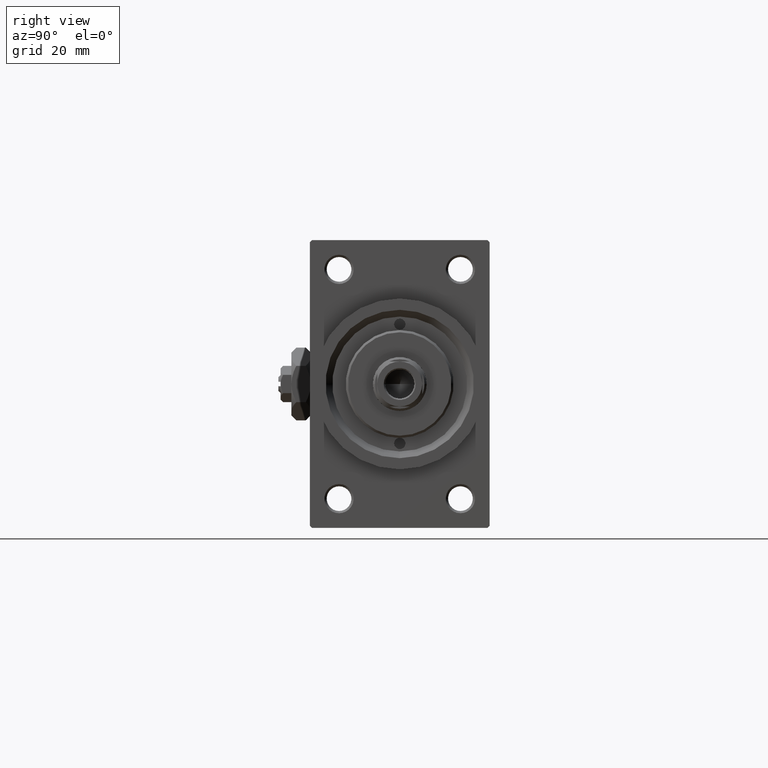
[diagram: clean part render]
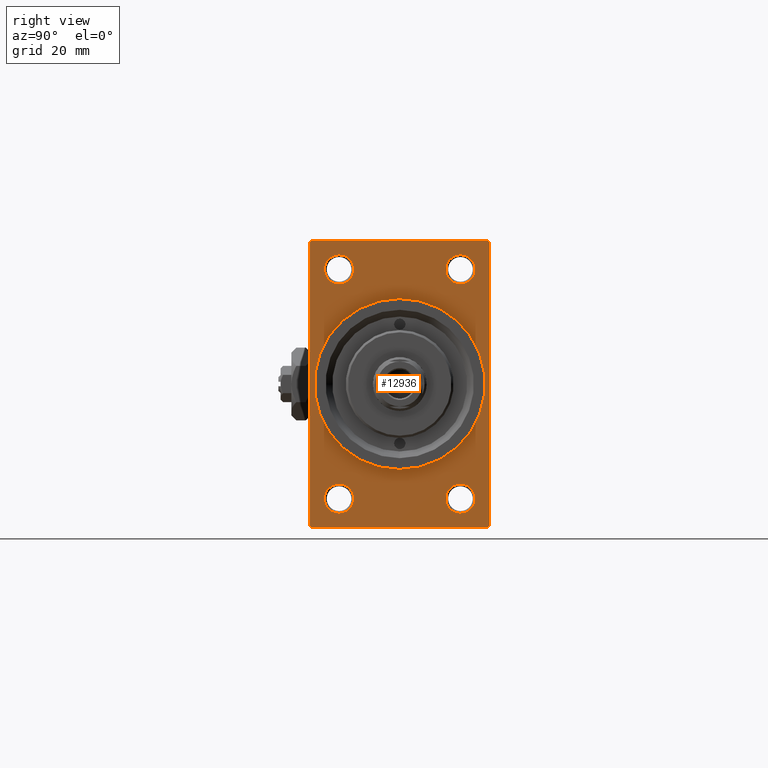
[diagram: same view with one face highlighted and labeled with its STEP entity id]
A machine part, right view. The second image highlights one B-rep face of the part: STEP entity #12936.
In plain terms, the highlighted planar face has unit normal (-1, 0, 0).
Its self-contained STEP definition (entity closure, byte-faithful):
#43 = VERTEX_POINT ( 'NONE', #16534 ) ;
#225 = EDGE_CURVE ( 'NONE', #3239, #8449, #17747, .T. ) ;
#439 = ORIENTED_EDGE ( 'NONE', *, *, #14176, .T. ) ;
#778 = DIRECTION ( 'NONE',  ( 1.000000000000000000, 0.000000000000000000, 0.000000000000000000 ) ) ;
#1007 = VERTEX_POINT ( 'NONE', #23251 ) ;
#1374 = EDGE_CURVE ( 'NONE', #1007, #13366, #32561, .T. ) ;
#1387 = ORIENTED_EDGE ( 'NONE', *, *, #41752, .F. ) ;
#1985 = ORIENTED_EDGE ( 'NONE', *, *, #25060, .T. ) ;
#2130 = ORIENTED_EDGE ( 'NONE', *, *, #24710, .T. ) ;
#2516 = AXIS2_PLACEMENT_3D ( 'NONE', #26109, #47912, #33058 ) ;
#3181 = ORIENTED_EDGE ( 'NONE', *, *, #18491, .T. ) ;
#3239 = VERTEX_POINT ( 'NONE', #28659 ) ;
#3296 = DIRECTION ( 'NONE',  ( -1.000000000000000000, -0.000000000000000000, -0.000000000000000000 ) ) ;
#3502 = CARTESIAN_POINT ( 'NONE',  ( 109.0000000000000142, 0.000000000000000000, 0.000000000000000000 ) ) ;
#3576 = CIRCLE ( 'NONE', #45446, 3.249999999999961364 ) ;
#3873 = EDGE_CURVE ( 'NONE', #43, #45428, #46825, .T. ) ;
#4296 = CARTESIAN_POINT ( 'NONE',  ( 109.0000000000000142, 2.326828918379970970E-15, -19.00000000000000000 ) ) ;
#4420 = VECTOR ( 'NONE', #29526, 1000.000000000000114 ) ;
#4446 = VERTEX_POINT ( 'NONE', #18445 ) ;
#5820 = ORIENTED_EDGE ( 'NONE', *, *, #22626, .T. ) ;
#6018 = LINE ( 'NONE', #47590, #4420 ) ;
#6249 = ORIENTED_EDGE ( 'NONE', *, *, #3873, .T. ) ;
#6769 = DIRECTION ( 'NONE',  ( 0.000000000000000000, -1.000000000000000000, -1.734723475976807094E-16 ) ) ;
#7155 = CARTESIAN_POINT ( 'NONE',  ( 109.0000000000000142, -13.50000000000000533, -25.49999999999999645 ) ) ;
#7211 = FACE_BOUND ( 'NONE', #21275, .T. ) ;
#7742 = CARTESIAN_POINT ( 'NONE',  ( 109.0000000000000142, 0.000000000000000000, 0.000000000000000000 ) ) ;
#8189 = CIRCLE ( 'NONE', #39026, 3.250000000000002665 ) ;
#8299 = VERTEX_POINT ( 'NONE', #39030 ) ;
#8449 = VERTEX_POINT ( 'NONE', #13995 ) ;
#8724 = EDGE_CURVE ( 'NONE', #13366, #1007, #8189, .T. ) ;
#8752 = CARTESIAN_POINT ( 'NONE',  ( 109.0000000000000142, -20.00000000000000000, 31.99999999999999289 ) ) ;
#8940 = EDGE_CURVE ( 'NONE', #8299, #4446, #17895, .T. ) ;
#9097 = ORIENTED_EDGE ( 'NONE', *, *, #1374, .T. ) ;
#9766 = CARTESIAN_POINT ( 'NONE',  ( 109.0000000000000142, -13.50000000000000533, -22.24999999999999289 ) ) ;
#10873 = CARTESIAN_POINT ( 'NONE',  ( 109.0000000000000142, 20.00000000000000000, 32.00000000000000000 ) ) ;
#10881 = DIRECTION ( 'NONE',  ( -1.000000000000000000, -0.000000000000000000, -0.000000000000000000 ) ) ;
#11174 = DIRECTION ( 'NONE',  ( -1.000000000000000000, 0.000000000000000000, -0.000000000000000000 ) ) ;
#11866 = CIRCLE ( 'NONE', #20513, 19.00000000000000000 ) ;
#11884 = DIRECTION ( 'NONE',  ( 0.000000000000000000, 0.000000000000000000, 1.000000000000000000 ) ) ;
#11913 = VERTEX_POINT ( 'NONE', #30309 ) ;
#12936 = ADVANCED_FACE ( 'NONE', ( #26002, #38133, #22543, #34668, #7211, #41843 ), #48805, .F. ) ;
#13242 = ORIENTED_EDGE ( 'NONE', *, *, #8724, .T. ) ;
#13335 = VERTEX_POINT ( 'NONE', #9766 ) ;
#13366 = VERTEX_POINT ( 'NONE', #33268 ) ;
#13391 = AXIS2_PLACEMENT_3D ( 'NONE', #7742, #778, #22814 ) ;
#13956 = EDGE_LOOP ( 'NONE', ( #9097, #13242 ) ) ;
#13995 = CARTESIAN_POINT ( 'NONE',  ( 109.0000000000000142, -19.49999999999998579, -32.00000000000000000 ) ) ;
#14176 = EDGE_CURVE ( 'NONE', #35489, #22071, #39773, .T. ) ;
#14235 = ORIENTED_EDGE ( 'NONE', *, *, #25270, .T. ) ;
#14260 = CARTESIAN_POINT ( 'NONE',  ( 109.0000000000000142, 19.49999999999998579, 32.00000000000000000 ) ) ;
#14382 = CARTESIAN_POINT ( 'NONE',  ( 109.0000000000000142, 13.49999999999999822, 25.50000000000000355 ) ) ;
#14592 = ORIENTED_EDGE ( 'NONE', *, *, #41459, .F. ) ;
#14663 = CARTESIAN_POINT ( 'NONE',  ( 109.0000000000000142, 13.49999999999999822, 22.25000000000004263 ) ) ;
#15020 = LINE ( 'NONE', #45211, #33718 ) ;
#16439 = DIRECTION ( 'NONE',  ( -1.000000000000000000, -0.000000000000000000, -0.000000000000000000 ) ) ;
#16520 = ORIENTED_EDGE ( 'NONE', *, *, #225, .T. ) ;
#16534 = CARTESIAN_POINT ( 'NONE',  ( 109.0000000000000142, 13.49999999999999822, -22.24999999999999645 ) ) ;
#16602 = EDGE_LOOP ( 'NONE', ( #1985, #6249 ) ) ;
#16799 = CARTESIAN_POINT ( 'NONE',  ( 109.0000000000000142, 13.49999999999999822, 25.50000000000000355 ) ) ;
#17112 = DIRECTION ( 'NONE',  ( -1.000000000000000000, -0.000000000000000000, -0.000000000000000000 ) ) ;
#17333 = CIRCLE ( 'NONE', #13391, 19.00000000000000000 ) ;
#17531 = CARTESIAN_POINT ( 'NONE',  ( 109.0000000000000142, 13.49999999999999822, 28.74999999999996803 ) ) ;
#17747 = LINE ( 'NONE', #48206, #32515 ) ;
#17895 = LINE ( 'NONE', #39939, #31877 ) ;
#17970 = LINE ( 'NONE', #14260, #28038 ) ;
#17996 = CARTESIAN_POINT ( 'NONE',  ( 109.0000000000000142, 20.00000000000000000, -31.49999999999998579 ) ) ;
#18445 = CARTESIAN_POINT ( 'NONE',  ( 109.0000000000000142, -19.49999999999998579, 31.99999999999999289 ) ) ;
#18469 = VECTOR ( 'NONE', #31747, 1000.000000000000000 ) ;
#18491 = EDGE_CURVE ( 'NONE', #37594, #3239, #27053, .T. ) ;
#18577 = DIRECTION ( 'NONE',  ( -0.000000000000000000, 0.000000000000000000, 1.000000000000000000 ) ) ;
#19532 = VERTEX_POINT ( 'NONE', #21771 ) ;
#20170 = EDGE_LOOP ( 'NONE', ( #28845, #2130 ) ) ;
#20499 = DIRECTION ( 'NONE',  ( -1.000000000000000000, -0.000000000000000000, -0.000000000000000000 ) ) ;
#20513 = AXIS2_PLACEMENT_3D ( 'NONE', #32370, #24679, #35131 ) ;
#20984 = VECTOR ( 'NONE', #38071, 1000.000000000000000 ) ;
#21275 = EDGE_LOOP ( 'NONE', ( #14592, #1387 ) ) ;
#21454 = DIRECTION ( 'NONE',  ( 0.000000000000000000, 0.7071067811865426878, -0.7071067811865524577 ) ) ;
#21462 = VECTOR ( 'NONE', #37048, 1000.000000000000114 ) ;
#21771 = CARTESIAN_POINT ( 'NONE',  ( 109.0000000000000142, -13.50000000000000533, -28.74999999999999645 ) ) ;
#22071 = VERTEX_POINT ( 'NONE', #17996 ) ;
#22178 = DIRECTION ( 'NONE',  ( 0.000000000000000000, -0.7071067811865474617, 0.7071067811865474617 ) ) ;
#22543 = FACE_BOUND ( 'NONE', #16602, .T. ) ;
#22626 = EDGE_CURVE ( 'NONE', #4446, #37594, #6018, .T. ) ;
#22675 = DIRECTION ( 'NONE',  ( 0.000000000000000000, -1.000000000000000000, 0.000000000000000000 ) ) ;
#22814 = DIRECTION ( 'NONE',  ( 0.000000000000000000, 0.000000000000000000, -1.000000000000000000 ) ) ;
#23118 = AXIS2_PLACEMENT_3D ( 'NONE', #40926, #3296, #11884 ) ;
#23251 = CARTESIAN_POINT ( 'NONE',  ( 109.0000000000000142, -13.50000000000000178, 22.25000000000000000 ) ) ;
#23752 = CARTESIAN_POINT ( 'NONE',  ( 109.0000000000000142, -13.50000000000000533, -25.49999999999999645 ) ) ;
#24104 = AXIS2_PLACEMENT_3D ( 'NONE', #29924, #10881, #25949 ) ;
#24207 = AXIS2_PLACEMENT_3D ( 'NONE', #23752, #39586, #35638 ) ;
#24679 = DIRECTION ( 'NONE',  ( 1.000000000000000000, 0.000000000000000000, 0.000000000000000000 ) ) ;
#24710 = EDGE_CURVE ( 'NONE', #45634, #40512, #3576, .T. ) ;
#24999 = EDGE_CURVE ( 'NONE', #19532, #13335, #39918, .T. ) ;
#25060 = EDGE_CURVE ( 'NONE', #45428, #43, #41534, .T. ) ;
#25270 = EDGE_CURVE ( 'NONE', #11913, #8299, #17970, .T. ) ;
#25949 = DIRECTION ( 'NONE',  ( 0.000000000000000000, 0.000000000000000000, 1.000000000000000000 ) ) ;
#26002 = FACE_BOUND ( 'NONE', #13956, .T. ) ;
#26109 = CARTESIAN_POINT ( 'NONE',  ( 109.0000000000000142, -13.50000000000000178, 25.50000000000000355 ) ) ;
#26346 = ORIENTED_EDGE ( 'NONE', *, *, #28120, .F. ) ;
#26599 = CIRCLE ( 'NONE', #24207, 3.250000000000002665 ) ;
#26649 = EDGE_CURVE ( 'NONE', #40512, #45634, #32078, .T. ) ;
#26980 = EDGE_CURVE ( 'NONE', #11913, #22071, #33385, .T. ) ;
#27053 = LINE ( 'NONE', #8752, #18469 ) ;
#27330 = AXIS2_PLACEMENT_3D ( 'NONE', #16799, #20499, #43293 ) ;
#27684 = EDGE_CURVE ( 'NONE', #13335, #19532, #26599, .T. ) ;
#28038 = VECTOR ( 'NONE', #22178, 1000.000000000000114 ) ;
#28120 = EDGE_CURVE ( 'NONE', #35489, #8449, #15020, .T. ) ;
#28139 = CARTESIAN_POINT ( 'NONE',  ( 109.0000000000000142, -20.00000000000000000, 31.49999999999997868 ) ) ;
#28659 = CARTESIAN_POINT ( 'NONE',  ( 109.0000000000000142, -20.00000000000000000, -31.49999999999997868 ) ) ;
#28845 = ORIENTED_EDGE ( 'NONE', *, *, #26649, .T. ) ;
#29526 = DIRECTION ( 'NONE',  ( -0.000000000000000000, -0.7071067811865474617, -0.7071067811865474617 ) ) ;
#29924 = CARTESIAN_POINT ( 'NONE',  ( 109.0000000000000142, 13.49999999999999822, -25.50000000000000000 ) ) ;
#30309 = CARTESIAN_POINT ( 'NONE',  ( 109.0000000000000142, 20.00000000000000000, 31.49999999999998579 ) ) ;
#31747 = DIRECTION ( 'NONE',  ( 0.000000000000000000, 0.000000000000000000, -1.000000000000000000 ) ) ;
#31779 = DIRECTION ( 'NONE',  ( 0.000000000000000000, 0.000000000000000000, 1.000000000000000000 ) ) ;
#31877 = VECTOR ( 'NONE', #6769, 1000.000000000000000 ) ;
#32078 = CIRCLE ( 'NONE', #27330, 3.249999999999961364 ) ;
#32370 = CARTESIAN_POINT ( 'NONE',  ( 109.0000000000000142, 0.000000000000000000, 0.000000000000000000 ) ) ;
#32515 = VECTOR ( 'NONE', #21454, 1000.000000000000000 ) ;
#32561 = CIRCLE ( 'NONE', #2516, 3.250000000000002665 ) ;
#32647 = CARTESIAN_POINT ( 'NONE',  ( 109.0000000000000142, 19.49999999999998579, -32.00000000000000000 ) ) ;
#32677 = CARTESIAN_POINT ( 'NONE',  ( 109.0000000000000142, 0.000000000000000000, 19.00000000000000000 ) ) ;
#33058 = DIRECTION ( 'NONE',  ( 0.000000000000000000, 0.000000000000000000, 1.000000000000000000 ) ) ;
#33142 = DIRECTION ( 'NONE',  ( 0.000000000000000000, 0.000000000000000000, 1.000000000000000000 ) ) ;
#33268 = CARTESIAN_POINT ( 'NONE',  ( 109.0000000000000142, -13.50000000000000178, 28.75000000000000355 ) ) ;
#33385 = LINE ( 'NONE', #10873, #20984 ) ;
#33718 = VECTOR ( 'NONE', #22675, 1000.000000000000000 ) ;
#34668 = FACE_BOUND ( 'NONE', #20170, .T. ) ;
#35049 = VERTEX_POINT ( 'NONE', #4296 ) ;
#35131 = DIRECTION ( 'NONE',  ( 0.000000000000000000, 0.000000000000000000, -1.000000000000000000 ) ) ;
#35198 = AXIS2_PLACEMENT_3D ( 'NONE', #7155, #41791, #33142 ) ;
#35489 = VERTEX_POINT ( 'NONE', #32647 ) ;
#35638 = DIRECTION ( 'NONE',  ( 0.000000000000000000, 0.000000000000000000, 1.000000000000000000 ) ) ;
#36243 = EDGE_LOOP ( 'NONE', ( #36282, #42523 ) ) ;
#36282 = ORIENTED_EDGE ( 'NONE', *, *, #24999, .T. ) ;
#37048 = DIRECTION ( 'NONE',  ( -0.000000000000000000, 0.7071067811865474617, 0.7071067811865474617 ) ) ;
#37594 = VERTEX_POINT ( 'NONE', #28139 ) ;
#38071 = DIRECTION ( 'NONE',  ( 0.000000000000000000, 0.000000000000000000, -1.000000000000000000 ) ) ;
#38133 = FACE_BOUND ( 'NONE', #36243, .T. ) ;
#39026 = AXIS2_PLACEMENT_3D ( 'NONE', #42440, #16439, #31779 ) ;
#39030 = CARTESIAN_POINT ( 'NONE',  ( 109.0000000000000142, 19.49999999999998579, 32.00000000000000000 ) ) ;
#39586 = DIRECTION ( 'NONE',  ( -1.000000000000000000, -0.000000000000000000, -0.000000000000000000 ) ) ;
#39656 = ORIENTED_EDGE ( 'NONE', *, *, #8940, .T. ) ;
#39773 = LINE ( 'NONE', #40017, #21462 ) ;
#39918 = CIRCLE ( 'NONE', #35198, 3.250000000000002665 ) ;
#39939 = CARTESIAN_POINT ( 'NONE',  ( 109.0000000000000142, 20.00000000000000000, 32.00000000000000000 ) ) ;
#40017 = CARTESIAN_POINT ( 'NONE',  ( 109.0000000000000142, 20.00000000000000000, -31.49999999999998579 ) ) ;
#40471 = ORIENTED_EDGE ( 'NONE', *, *, #26980, .F. ) ;
#40512 = VERTEX_POINT ( 'NONE', #14663 ) ;
#40926 = CARTESIAN_POINT ( 'NONE',  ( 109.0000000000000142, 13.49999999999999822, -25.50000000000000000 ) ) ;
#40974 = CARTESIAN_POINT ( 'NONE',  ( 109.0000000000000142, 13.49999999999999822, -28.75000000000000000 ) ) ;
#41246 = AXIS2_PLACEMENT_3D ( 'NONE', #3502, #11174, #18577 ) ;
#41459 = EDGE_CURVE ( 'NONE', #47822, #35049, #17333, .T. ) ;
#41534 = CIRCLE ( 'NONE', #24104, 3.250000000000002665 ) ;
#41752 = EDGE_CURVE ( 'NONE', #35049, #47822, #11866, .T. ) ;
#41791 = DIRECTION ( 'NONE',  ( -1.000000000000000000, -0.000000000000000000, -0.000000000000000000 ) ) ;
#41843 = FACE_OUTER_BOUND ( 'NONE', #42835, .T. ) ;
#42440 = CARTESIAN_POINT ( 'NONE',  ( 109.0000000000000142, -13.50000000000000178, 25.50000000000000355 ) ) ;
#42523 = ORIENTED_EDGE ( 'NONE', *, *, #27684, .T. ) ;
#42835 = EDGE_LOOP ( 'NONE', ( #3181, #16520, #26346, #439, #40471, #14235, #39656, #5820 ) ) ;
#43293 = DIRECTION ( 'NONE',  ( 0.000000000000000000, 0.000000000000000000, 1.000000000000000000 ) ) ;
#45211 = CARTESIAN_POINT ( 'NONE',  ( 109.0000000000000142, 20.00000000000000000, -32.00000000000000000 ) ) ;
#45428 = VERTEX_POINT ( 'NONE', #40974 ) ;
#45446 = AXIS2_PLACEMENT_3D ( 'NONE', #14382, #17112, #47808 ) ;
#45634 = VERTEX_POINT ( 'NONE', #17531 ) ;
#46825 = CIRCLE ( 'NONE', #23118, 3.250000000000002665 ) ;
#47590 = CARTESIAN_POINT ( 'NONE',  ( 109.0000000000000142, -20.00000000000000000, 31.49999999999997868 ) ) ;
#47808 = DIRECTION ( 'NONE',  ( 0.000000000000000000, 0.000000000000000000, 1.000000000000000000 ) ) ;
#47822 = VERTEX_POINT ( 'NONE', #32677 ) ;
#47912 = DIRECTION ( 'NONE',  ( -1.000000000000000000, -0.000000000000000000, -0.000000000000000000 ) ) ;
#48206 = CARTESIAN_POINT ( 'NONE',  ( 109.0000000000000142, -19.49999999999998579, -32.00000000000000000 ) ) ;
#48805 = PLANE ( 'NONE',  #41246 ) ;